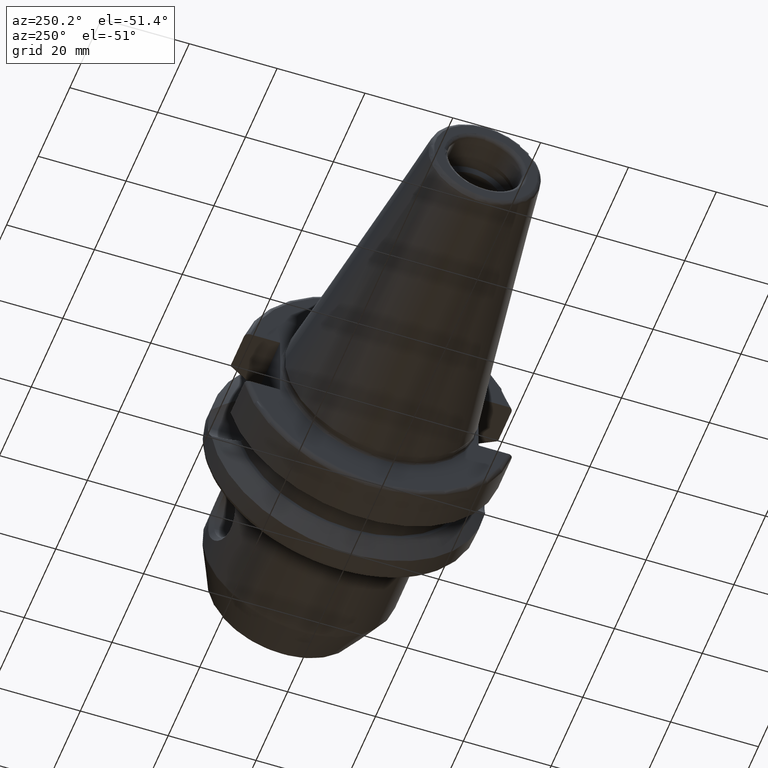
[diagram: clean part render]
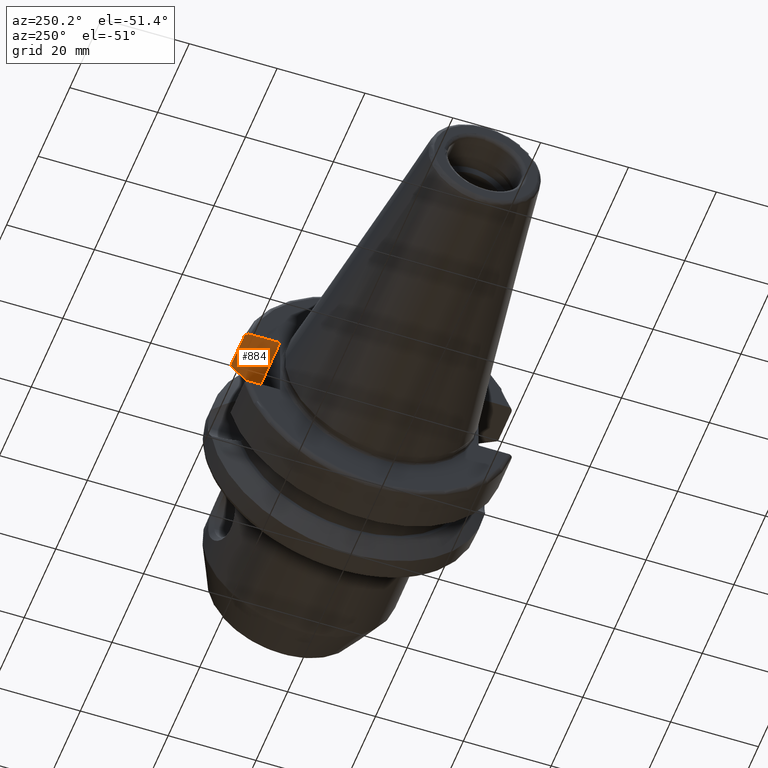
[diagram: same view with one face highlighted and labeled with its STEP entity id]
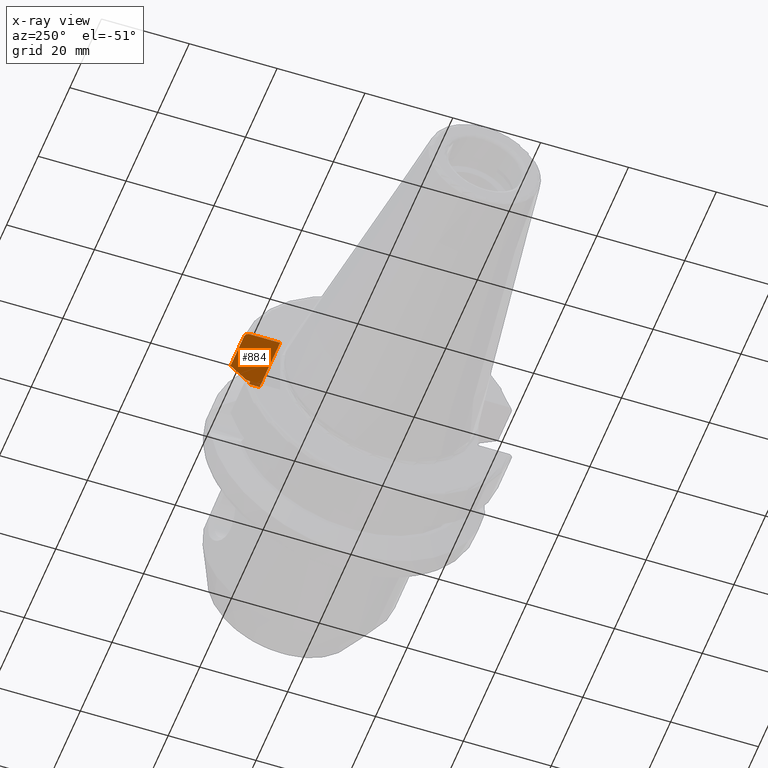
[diagram: x-ray of the same camera — body ghosted, the highlighted face saturated]
A machine part, auxiliary view. The second image highlights one B-rep face of the part: STEP entity #884.
The next image is the same camera in x-ray: the body ghosted, the highlighted face saturated — about 2% of this face is hidden behind the body in this view.
In plain terms, the highlighted planar face has unit normal (-0, 0, 1).
Its self-contained STEP definition (entity closure, byte-faithful):
#18=(
BOUNDED_CURVE()
B_SPLINE_CURVE(2,(#1827,#1828,#1829),.UNSPECIFIED.,.F.,.F.)
B_SPLINE_CURVE_WITH_KNOTS((3,3),(0.,0.52358279083281),.UNSPECIFIED.)
CURVE()
GEOMETRIC_REPRESENTATION_ITEM()
RATIONAL_B_SPLINE_CURVE((1.,1.00307360097546,1.))
REPRESENTATION_ITEM('')
);
#48=B_SPLINE_CURVE_WITH_KNOTS('',3,(#1814,#1815,#1816,#1817,#1818,#1819,
#1820,#1821,#1822,#1823),.UNSPECIFIED.,.F.,.F.,(4,2,2,2,4),(0.,0.0366169489027566,
0.0738743445372396,0.111946181815504,0.150751871388631),.UNSPECIFIED.);
#78=LINE('',#1790,#123);
#80=LINE('',#1808,#125);
#81=LINE('',#1810,#126);
#82=LINE('',#1812,#127);
#83=LINE('',#1825,#128);
#84=LINE('',#1830,#129);
#123=VECTOR('',#1210,10.);
#125=VECTOR('',#1214,10.);
#126=VECTOR('',#1215,10.);
#127=VECTOR('',#1216,10.);
#128=VECTOR('',#1217,10.);
#129=VECTOR('',#1218,10.);
#174=PLANE('',#997);
#212=FACE_OUTER_BOUND('',#272,.T.);
#272=EDGE_LOOP('',(#734,#735,#736,#737,#738,#739,#740,#741));
#423=VERTEX_POINT('',#1787);
#424=VERTEX_POINT('',#1789);
#427=VERTEX_POINT('',#1807);
#428=VERTEX_POINT('',#1809);
#429=VERTEX_POINT('',#1811);
#430=VERTEX_POINT('',#1813);
#431=VERTEX_POINT('',#1824);
#432=VERTEX_POINT('',#1826);
#535=EDGE_CURVE('',#423,#424,#78,.T.);
#539=EDGE_CURVE('',#424,#427,#80,.T.);
#540=EDGE_CURVE('',#428,#423,#81,.T.);
#541=EDGE_CURVE('',#429,#428,#82,.T.);
#542=EDGE_CURVE('',#430,#429,#48,.T.);
#543=EDGE_CURVE('',#431,#430,#83,.T.);
#544=EDGE_CURVE('',#432,#431,#18,.T.);
#545=EDGE_CURVE('',#427,#432,#84,.T.);
#734=ORIENTED_EDGE('',*,*,#539,.F.);
#735=ORIENTED_EDGE('',*,*,#535,.F.);
#736=ORIENTED_EDGE('',*,*,#540,.F.);
#737=ORIENTED_EDGE('',*,*,#541,.F.);
#738=ORIENTED_EDGE('',*,*,#542,.F.);
#739=ORIENTED_EDGE('',*,*,#543,.F.);
#740=ORIENTED_EDGE('',*,*,#544,.F.);
#741=ORIENTED_EDGE('',*,*,#545,.F.);
#884=ADVANCED_FACE('',(#212),#174,.F.);
#997=AXIS2_PLACEMENT_3D('',#1806,#1212,#1213);
#1210=DIRECTION('',(0.,1.,0.));
#1212=DIRECTION('center_axis',(-8.57315076930623E-17,0.,1.));
#1213=DIRECTION('ref_axis',(1.,0.,8.57315076930623E-17));
#1214=DIRECTION('',(-1.,0.,0.));
#1215=DIRECTION('',(1.,0.,8.57315076930623E-17));
#1216=DIRECTION('',(0.,-1.,0.));
#1217=DIRECTION('',(-1.,0.,0.));
#1218=DIRECTION('',(0.,1.,0.));
#1787=CARTESIAN_POINT('',(14.95,22.6,8.05));
#1789=CARTESIAN_POINT('',(14.95,25.0377215417058,8.05));
#1790=CARTESIAN_POINT('',(14.95,22.6,8.05));
#1806=CARTESIAN_POINT('Origin',(1.99999999999999,22.6,8.05));
#1807=CARTESIAN_POINT('',(14.1,25.0377215417058,8.05));
#1808=CARTESIAN_POINT('',(16.6,25.0377215417058,8.05));
#1809=CARTESIAN_POINT('',(1.99999999999999,22.6,8.05));
#1810=CARTESIAN_POINT('',(1.99999999999999,22.6,8.05));
#1811=CARTESIAN_POINT('',(1.99999999999999,29.4184890842477,8.05));
#1812=CARTESIAN_POINT('',(1.99999999999999,26.55,8.05));
#1813=CARTESIAN_POINT('',(2.99999999999999,30.4540227227866,8.05));
#1814=CARTESIAN_POINT('Ctrl Pts',(3.,30.4540227227866,8.05));
#1815=CARTESIAN_POINT('Ctrl Pts',(2.87794350365748,30.4540227227866,8.05));
#1816=CARTESIAN_POINT('Ctrl Pts',(2.73442803339431,30.4247631098996,8.05));
#1817=CARTESIAN_POINT('Ctrl Pts',(2.50758665841081,30.3289456947341,8.05));
#1818=CARTESIAN_POINT('Ctrl Pts',(2.38465986426588,30.2446912007727,8.05));
#1819=CARTESIAN_POINT('Ctrl Pts',(2.2089547883793,30.0653098968133,8.05));
#1820=CARTESIAN_POINT('Ctrl Pts',(2.12587454939785,29.9376810968085,8.05));
#1821=CARTESIAN_POINT('Ctrl Pts',(2.02950258743517,29.7002346307938,8.05));
#1822=CARTESIAN_POINT('Ctrl Pts',(1.99999999999999,29.5478413828248,8.05));
#1823=CARTESIAN_POINT('Ctrl Pts',(1.99999999999999,29.4184890842477,8.05));
#1824=CARTESIAN_POINT('',(11.5690363073382,30.4540227227866,8.05));
#1825=CARTESIAN_POINT('',(7.28451815366907,30.4540227227866,8.05));
#1826=CARTESIAN_POINT('',(14.1,25.8705666509569,8.05));
#1827=CARTESIAN_POINT('Ctrl Pts',(14.1,25.8705666509569,8.05));
#1828=CARTESIAN_POINT('Ctrl Pts',(12.9374976962938,27.989970265181,8.05));
#1829=CARTESIAN_POINT('Ctrl Pts',(11.5690363073382,30.4540227227866,8.05));
#1830=CARTESIAN_POINT('',(14.1,24.45,8.05));